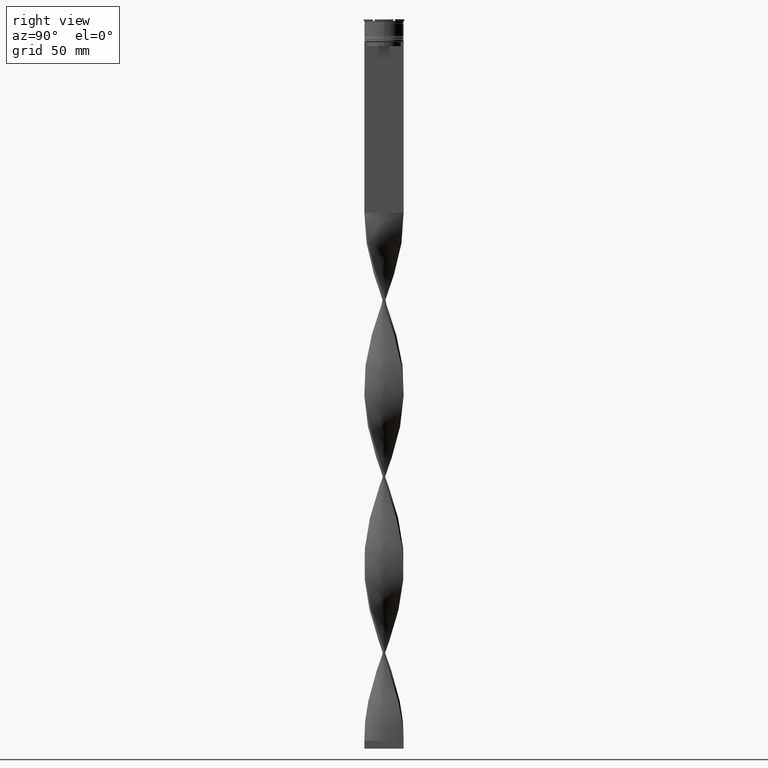
[diagram: clean part render]
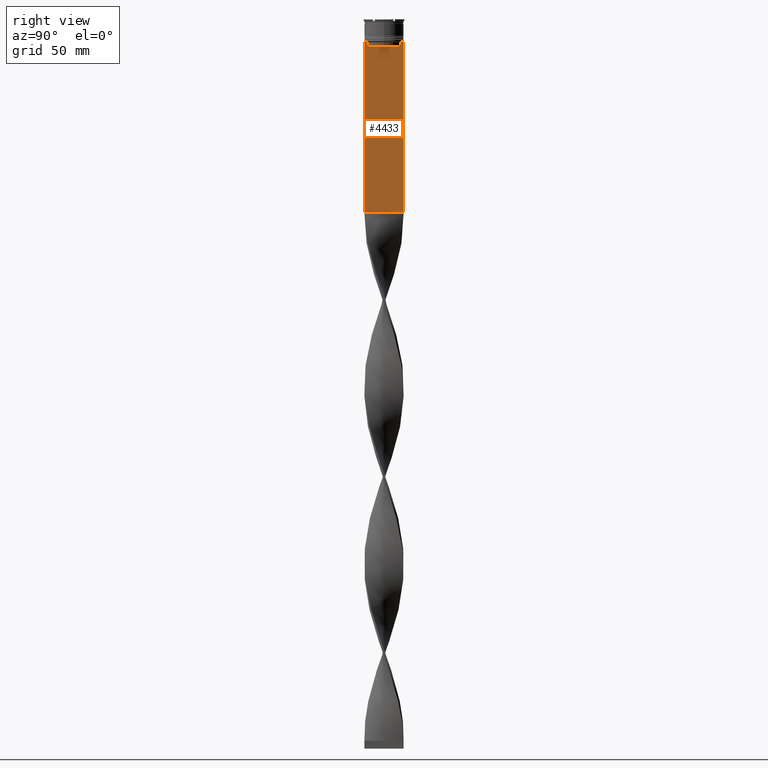
[diagram: same view with one face highlighted and labeled with its STEP entity id]
A machine part, right view. The second image highlights one B-rep face of the part: STEP entity #4433.
In plain terms, the highlighted planar face has unit normal (-1, 0, 0).
Its self-contained STEP definition (entity closure, byte-faithful):
#66 = DIRECTION ( 'NONE',  ( 0.000000000000000000, -1.000000000000000000, 0.000000000000000000 ) ) ;
#99 = DIRECTION ( 'NONE',  ( 0.000000000000000000, 0.000000000000000000, -1.000000000000000000 ) ) ;
#114 = EDGE_CURVE ( 'NONE', #3304, #3067, #419, .T. ) ;
#163 = CARTESIAN_POINT ( 'NONE',  ( 0.7500000000000002220, -10.87416663473574197, 0.000000000000000000 ) ) ;
#171 = ORIENTED_EDGE ( 'NONE', *, *, #2870, .T. ) ;
#172 = ORIENTED_EDGE ( 'NONE', *, *, #4318, .T. ) ;
#271 = ORIENTED_EDGE ( 'NONE', *, *, #4648, .T. ) ;
#285 = CARTESIAN_POINT ( 'NONE',  ( 0.7500000000000002220, -10.87416663473574197, -14.50000000000000000 ) ) ;
#416 = CARTESIAN_POINT ( 'NONE',  ( 0.7500000000000002220, -12.50000000000000000, -14.00000000000000178 ) ) ;
#419 = LINE ( 'NONE', #1085, #2067 ) ;
#429 = CARTESIAN_POINT ( 'NONE',  ( 0.7500000000000002220, -11.37530219378809093, -14.00000000000000178 ) ) ;
#512 = VECTOR ( 'NONE', #784, 1000.000000000000000 ) ;
#521 = VERTEX_POINT ( 'NONE', #4087 ) ;
#572 = DIRECTION ( 'NONE',  ( 0.000000000000000000, 0.000000000000000000, 1.000000000000000000 ) ) ;
#652 = VECTOR ( 'NONE', #3252, 1000.000000000000000 ) ;
#702 = CARTESIAN_POINT ( 'NONE',  ( 0.7500000000000002220, 12.50000000000000000, -14.00000000000000178 ) ) ;
#784 = DIRECTION ( 'NONE',  ( 0.000000000000000000, -1.000000000000000000, 0.000000000000000000 ) ) ;
#788 = LINE ( 'NONE', #813, #652 ) ;
#813 = CARTESIAN_POINT ( 'NONE',  ( 0.7500000000000002220, 10.87416663473574197, 0.000000000000000000 ) ) ;
#834 = CARTESIAN_POINT ( 'NONE',  ( 0.7500000000000002220, -12.50000000000000000, -123.0000000000000000 ) ) ;
#849 = EDGE_CURVE ( 'NONE', #521, #909, #2567, .T. ) ;
#863 = LINE ( 'NONE', #4481, #1607 ) ;
#909 = VERTEX_POINT ( 'NONE', #834 ) ;
#930 = VERTEX_POINT ( 'NONE', #1867 ) ;
#994 = CARTESIAN_POINT ( 'NONE',  ( 0.7500000000000002220, -12.50000000000000000, -14.00000000000000178 ) ) ;
#1085 = CARTESIAN_POINT ( 'NONE',  ( 0.7500000000000002220, 12.50000000000000000, 11.04495957273638673 ) ) ;
#1277 = CARTESIAN_POINT ( 'NONE',  ( 0.7500000000000002220, -11.37530219378809093, -14.00000000000000178 ) ) ;
#1346 = EDGE_CURVE ( 'NONE', #3901, #2112, #788, .T. ) ;
#1359 = CARTESIAN_POINT ( 'NONE',  ( 0.7500000000000002220, 11.20826531587977648, -14.16667499681701514 ) ) ;
#1422 = VECTOR ( 'NONE', #4214, 1000.000000000000000 ) ;
#1447 = VERTEX_POINT ( 'NONE', #3000 ) ;
#1463 = CARTESIAN_POINT ( 'NONE',  ( 0.7500000000000002220, 12.37729776647553059, -14.00000000000000178 ) ) ;
#1477 = ORIENTED_EDGE ( 'NONE', *, *, #2172, .T. ) ;
#1517 = EDGE_CURVE ( 'NONE', #3309, #930, #3765, .T. ) ;
#1536 = ORIENTED_EDGE ( 'NONE', *, *, #114, .F. ) ;
#1551 = VECTOR ( 'NONE', #2014, 1000.000000000000000 ) ;
#1556 = DIRECTION ( 'NONE',  ( -0.000000000000000000, -0.000000000000000000, 1.000000000000000000 ) ) ;
#1607 = VECTOR ( 'NONE', #2689, 1000.000000000000000 ) ;
#1686 = CARTESIAN_POINT ( 'NONE',  ( 0.7500000000000002220, 11.37530219378809093, -14.00000000000000178 ) ) ;
#1746 = CARTESIAN_POINT ( 'NONE',  ( 0.7500000000000002220, 12.50000000000000000, -123.0000000000000000 ) ) ;
#1762 = EDGE_CURVE ( 'NONE', #3134, #4001, #2513, .T. ) ;
#1867 = CARTESIAN_POINT ( 'NONE',  ( 0.7500000000000002220, 11.37530219378809093, -14.00000000000000178 ) ) ;
#1896 = CARTESIAN_POINT ( 'NONE',  ( 0.7500000000000002220, 10.87416663473574019, -17.00000000000000000 ) ) ;
#1934 = DIRECTION ( 'NONE',  ( 0.000000000000000000, 1.000000000000000000, 0.000000000000000000 ) ) ;
#2010 = VECTOR ( 'NONE', #1556, 1000.000000000000000 ) ;
#2014 = DIRECTION ( 'NONE',  ( 0.000000000000000000, -1.000000000000000000, 0.000000000000000000 ) ) ;
#2067 = VECTOR ( 'NONE', #2557, 1000.000000000000000 ) ;
#2112 = VERTEX_POINT ( 'NONE', #1896 ) ;
#2134 = ORIENTED_EDGE ( 'NONE', *, *, #1517, .T. ) ;
#2172 = EDGE_CURVE ( 'NONE', #3304, #3309, #4414, .T. ) ;
#2270 = DIRECTION ( 'NONE',  ( -1.000000000000000000, 0.000000000000000000, 0.000000000000000000 ) ) ;
#2294 = FACE_OUTER_BOUND ( 'NONE', #3402, .T. ) ;
#2297 = CARTESIAN_POINT ( 'NONE',  ( 0.7500000000000002220, 10.90000000000000213, -17.00000000000000000 ) ) ;
#2347 = ORIENTED_EDGE ( 'NONE', *, *, #1346, .T. ) ;
#2513 = B_SPLINE_CURVE_WITH_KNOTS ( 'NONE', 3,
 ( #285, #4491, #3038, #1277 ),
 .UNSPECIFIED., .F., .F.,
 ( 4, 4 ),
 ( 0.05009718908159448147, 0.05081156920313959630 ),
 .UNSPECIFIED. ) ;
#2554 = CARTESIAN_POINT ( 'NONE',  ( 0.7500000000000002220, -10.87416663473574019, -17.00000000000000000 ) ) ;
#2557 = DIRECTION ( 'NONE',  ( 0.000000000000000000, 0.000000000000000000, -1.000000000000000000 ) ) ;
#2567 = LINE ( 'NONE', #3249, #3945 ) ;
#2576 = ORIENTED_EDGE ( 'NONE', *, *, #3915, .T. ) ;
#2606 = EDGE_CURVE ( 'NONE', #930, #3901, #2613, .T. ) ;
#2613 = B_SPLINE_CURVE_WITH_KNOTS ( 'NONE', 3,
 ( #1686, #1359, #4018, #2921 ),
 .UNSPECIFIED., .F., .F.,
 ( 4, 4 ),
 ( 0.01936090553552769281, 0.02006881572333104116 ),
 .UNSPECIFIED. ) ;
#2689 = DIRECTION ( 'NONE',  ( 0.000000000000000000, -1.000000000000000000, 0.000000000000000000 ) ) ;
#2784 = LINE ( 'NONE', #994, #1422 ) ;
#2870 = EDGE_CURVE ( 'NONE', #3409, #3134, #4121, .T. ) ;
#2921 = CARTESIAN_POINT ( 'NONE',  ( 0.7500000000000002220, 10.87416663473574197, -14.50000000000000000 ) ) ;
#3000 = CARTESIAN_POINT ( 'NONE',  ( 0.7500000000000002220, -12.37729776647553059, -14.00000000000000178 ) ) ;
#3038 = CARTESIAN_POINT ( 'NONE',  ( 0.7500000000000002220, -11.20826532207830439, -14.16667499063191826 ) ) ;
#3043 = LINE ( 'NONE', #3404, #3346 ) ;
#3067 = VERTEX_POINT ( 'NONE', #1746 ) ;
#3134 = VERTEX_POINT ( 'NONE', #4589 ) ;
#3226 = ORIENTED_EDGE ( 'NONE', *, *, #1762, .T. ) ;
#3249 = CARTESIAN_POINT ( 'NONE',  ( 0.7500000000000002220, -12.50000000000000000, 11.04495957273638673 ) ) ;
#3252 = DIRECTION ( 'NONE',  ( 0.000000000000000000, 0.000000000000000000, -1.000000000000000000 ) ) ;
#3304 = VERTEX_POINT ( 'NONE', #702 ) ;
#3309 = VERTEX_POINT ( 'NONE', #1463 ) ;
#3316 = AXIS2_PLACEMENT_3D ( 'NONE', #3732, #2270, #572 ) ;
#3346 = VECTOR ( 'NONE', #1934, 1000.000000000000000 ) ;
#3402 = EDGE_LOOP ( 'NONE', ( #2134, #3458, #2347, #2576, #171, #3226, #271, #4587, #4330, #172, #1536, #1477 ) ) ;
#3404 = CARTESIAN_POINT ( 'NONE',  ( 0.7500000000000002220, -12.50000000000000000, -123.0000000000000000 ) ) ;
#3409 = VERTEX_POINT ( 'NONE', #2554 ) ;
#3458 = ORIENTED_EDGE ( 'NONE', *, *, #2606, .T. ) ;
#3679 = EDGE_CURVE ( 'NONE', #1447, #521, #2784, .T. ) ;
#3732 = CARTESIAN_POINT ( 'NONE',  ( 0.7500000000000002220, -12.50000000000000000, 11.04495957273638673 ) ) ;
#3765 = LINE ( 'NONE', #4502, #1551 ) ;
#3783 = PLANE ( 'NONE',  #3316 ) ;
#3901 = VERTEX_POINT ( 'NONE', #4048 ) ;
#3915 = EDGE_CURVE ( 'NONE', #2112, #3409, #4005, .T. ) ;
#3945 = VECTOR ( 'NONE', #99, 1000.000000000000000 ) ;
#3955 = VECTOR ( 'NONE', #66, 1000.000000000000000 ) ;
#4001 = VERTEX_POINT ( 'NONE', #429 ) ;
#4005 = LINE ( 'NONE', #2297, #512 ) ;
#4018 = CARTESIAN_POINT ( 'NONE',  ( 0.7500000000000002220, 11.04122051153452055, -14.33334204648729404 ) ) ;
#4048 = CARTESIAN_POINT ( 'NONE',  ( 0.7500000000000002220, 10.87416663473574197, -14.50000000000000000 ) ) ;
#4087 = CARTESIAN_POINT ( 'NONE',  ( 0.7500000000000002220, -12.50000000000000000, -14.00000000000000178 ) ) ;
#4121 = LINE ( 'NONE', #163, #2010 ) ;
#4214 = DIRECTION ( 'NONE',  ( 0.000000000000000000, -1.000000000000000000, 0.000000000000000000 ) ) ;
#4318 = EDGE_CURVE ( 'NONE', #909, #3067, #3043, .T. ) ;
#4330 = ORIENTED_EDGE ( 'NONE', *, *, #849, .T. ) ;
#4414 = LINE ( 'NONE', #416, #3955 ) ;
#4433 = ADVANCED_FACE ( 'NONE', ( #2294 ), #3783, .F. ) ;
#4481 = CARTESIAN_POINT ( 'NONE',  ( 0.7500000000000002220, -12.50000000000000000, -14.00000000000000178 ) ) ;
#4491 = CARTESIAN_POINT ( 'NONE',  ( 0.7500000000000002220, -11.04122051801870441, -14.33334204001847567 ) ) ;
#4502 = CARTESIAN_POINT ( 'NONE',  ( 0.7500000000000002220, -12.50000000000000000, -14.00000000000000178 ) ) ;
#4587 = ORIENTED_EDGE ( 'NONE', *, *, #3679, .T. ) ;
#4589 = CARTESIAN_POINT ( 'NONE',  ( 0.7500000000000002220, -10.87416663473574197, -14.50000000000000000 ) ) ;
#4648 = EDGE_CURVE ( 'NONE', #4001, #1447, #863, .T. ) ;